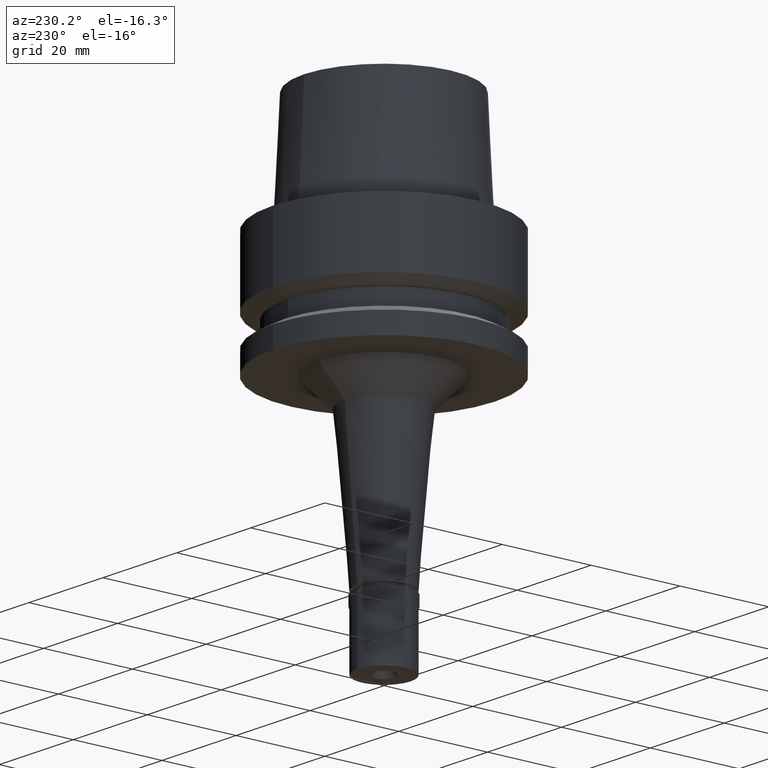
[diagram: clean part render]
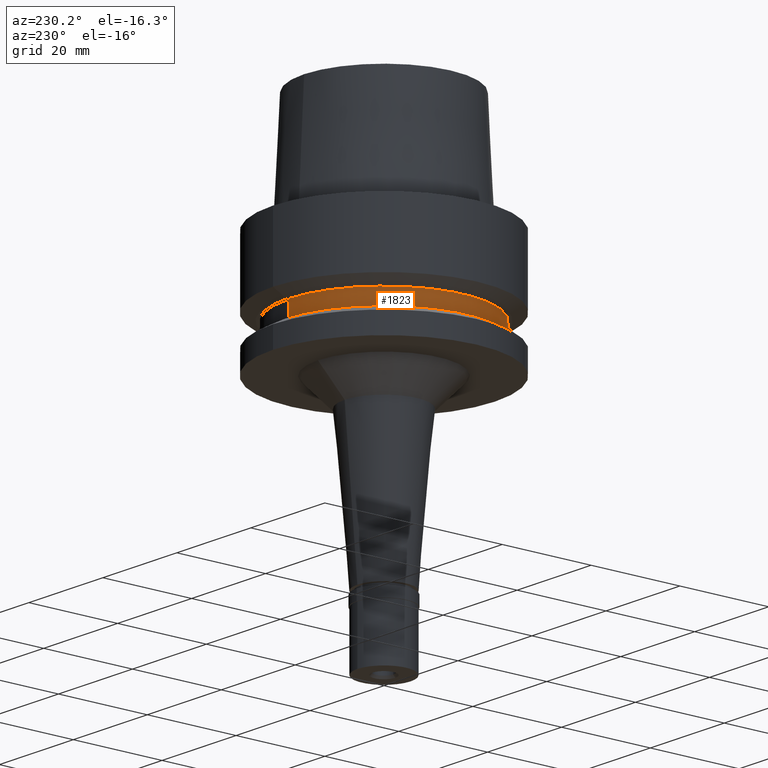
[diagram: same view with one face highlighted and labeled with its STEP entity id]
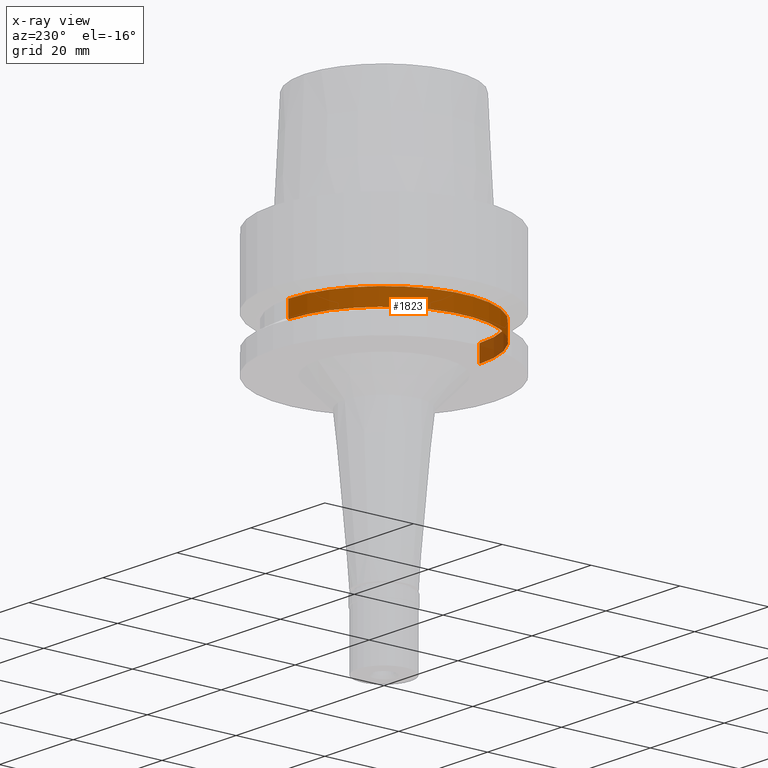
[diagram: x-ray of the same camera — body ghosted, the highlighted face saturated]
A machine part, auxiliary view. The second image highlights one B-rep face of the part: STEP entity #1823.
The next image is the same camera in x-ray: the body ghosted, the highlighted face saturated — about 11% of this face is hidden behind the body in this view.
In plain terms, the highlighted cylindrical surface (partial cylindrical patch) has radius 21.5 mm, axis along (0, 0, -1).
Its self-contained STEP definition (entity closure, byte-faithful):
#1 = DIRECTION ( 'NONE',  ( 0.0000000000000000000, 0.0000000000000000000, -1.000000000000000000 ) ) ;
#101 = CARTESIAN_POINT ( 'NONE',  ( 0.0000000000000000000, 21.50000000000000000, -19.87500000000000000 ) ) ;
#213 = LINE ( 'NONE', #1685, #979 ) ;
#222 = LINE ( 'NONE', #2299, #2502 ) ;
#360 = DIRECTION ( 'NONE',  ( 0.0000000000000000000, 0.0000000000000000000, 1.000000000000000000 ) ) ;
#462 = ORIENTED_EDGE ( 'NONE', *, *, #1143, .T. ) ;
#589 = EDGE_CURVE ( 'NONE', #1306, #2311, #847, .T. ) ;
#760 = DIRECTION ( 'NONE',  ( 0.0000000000000000000, 1.000000000000000000, 0.0000000000000000000 ) ) ;
#773 = CARTESIAN_POINT ( 'NONE',  ( 0.0000000000000000000, -21.50000000000000000, -19.87500000000000000 ) ) ;
#782 = EDGE_LOOP ( 'NONE', ( #462, #1590, #1187, #2408 ) ) ;
#847 = CIRCLE ( 'NONE', #2637, 21.50000000000000000 ) ;
#877 = CARTESIAN_POINT ( 'NONE',  ( 0.0000000000000000000, -21.50000000000000000, -16.12500000000000000 ) ) ;
#979 = VECTOR ( 'NONE', #1904, 1000.000000000000000 ) ;
#981 = CARTESIAN_POINT ( 'NONE',  ( 0.0000000000000000000, 0.0000000000000000000, 30.05000000000000071 ) ) ;
#993 = CARTESIAN_POINT ( 'NONE',  ( 0.0000000000000000000, 21.50000000000000000, -16.12500000000000000 ) ) ;
#1143 = EDGE_CURVE ( 'NONE', #1609, #1817, #2633, .T. ) ;
#1187 = ORIENTED_EDGE ( 'NONE', *, *, #589, .T. ) ;
#1221 = CARTESIAN_POINT ( 'NONE',  ( 0.0000000000000000000, 0.0000000000000000000, -19.87500000000000000 ) ) ;
#1283 = DIRECTION ( 'NONE',  ( 0.0000000000000000000, 0.0000000000000000000, -1.000000000000000000 ) ) ;
#1306 = VERTEX_POINT ( 'NONE', #877 ) ;
#1321 = EDGE_CURVE ( 'NONE', #2311, #1609, #213, .T. ) ;
#1388 = AXIS2_PLACEMENT_3D ( 'NONE', #1221, #360, #760 ) ;
#1397 = CYLINDRICAL_SURFACE ( 'NONE', #1864, 21.50000000000000000 ) ;
#1590 = ORIENTED_EDGE ( 'NONE', *, *, #1919, .F. ) ;
#1609 = VERTEX_POINT ( 'NONE', #101 ) ;
#1614 = DIRECTION ( 'NONE',  ( 0.0000000000000000000, -1.000000000000000000, 0.0000000000000000000 ) ) ;
#1685 = CARTESIAN_POINT ( 'NONE',  ( 0.0000000000000000000, 21.50000000000000000, -16.12500000000000000 ) ) ;
#1817 = VERTEX_POINT ( 'NONE', #773 ) ;
#1823 = ADVANCED_FACE ( 'NONE', ( #1976 ), #1397, .T. ) ;
#1824 = DIRECTION ( 'NONE',  ( 0.0000000000000000000, 0.0000000000000000000, -1.000000000000000000 ) ) ;
#1864 = AXIS2_PLACEMENT_3D ( 'NONE', #981, #1824, #1614 ) ;
#1904 = DIRECTION ( 'NONE',  ( 0.0000000000000000000, 0.0000000000000000000, -1.000000000000000000 ) ) ;
#1919 = EDGE_CURVE ( 'NONE', #1306, #1817, #222, .T. ) ;
#1976 = FACE_OUTER_BOUND ( 'NONE', #782, .T. ) ;
#2101 = DIRECTION ( 'NONE',  ( 0.0000000000000000000, -1.000000000000000000, 0.0000000000000000000 ) ) ;
#2299 = CARTESIAN_POINT ( 'NONE',  ( 0.0000000000000000000, -21.50000000000000000, -16.12500000000000000 ) ) ;
#2311 = VERTEX_POINT ( 'NONE', #993 ) ;
#2408 = ORIENTED_EDGE ( 'NONE', *, *, #1321, .T. ) ;
#2502 = VECTOR ( 'NONE', #1283, 1000.000000000000000 ) ;
#2510 = CARTESIAN_POINT ( 'NONE',  ( 0.0000000000000000000, 0.0000000000000000000, -16.12500000000000000 ) ) ;
#2633 = CIRCLE ( 'NONE', #1388, 21.50000000000000000 ) ;
#2637 = AXIS2_PLACEMENT_3D ( 'NONE', #2510, #1, #2101 ) ;